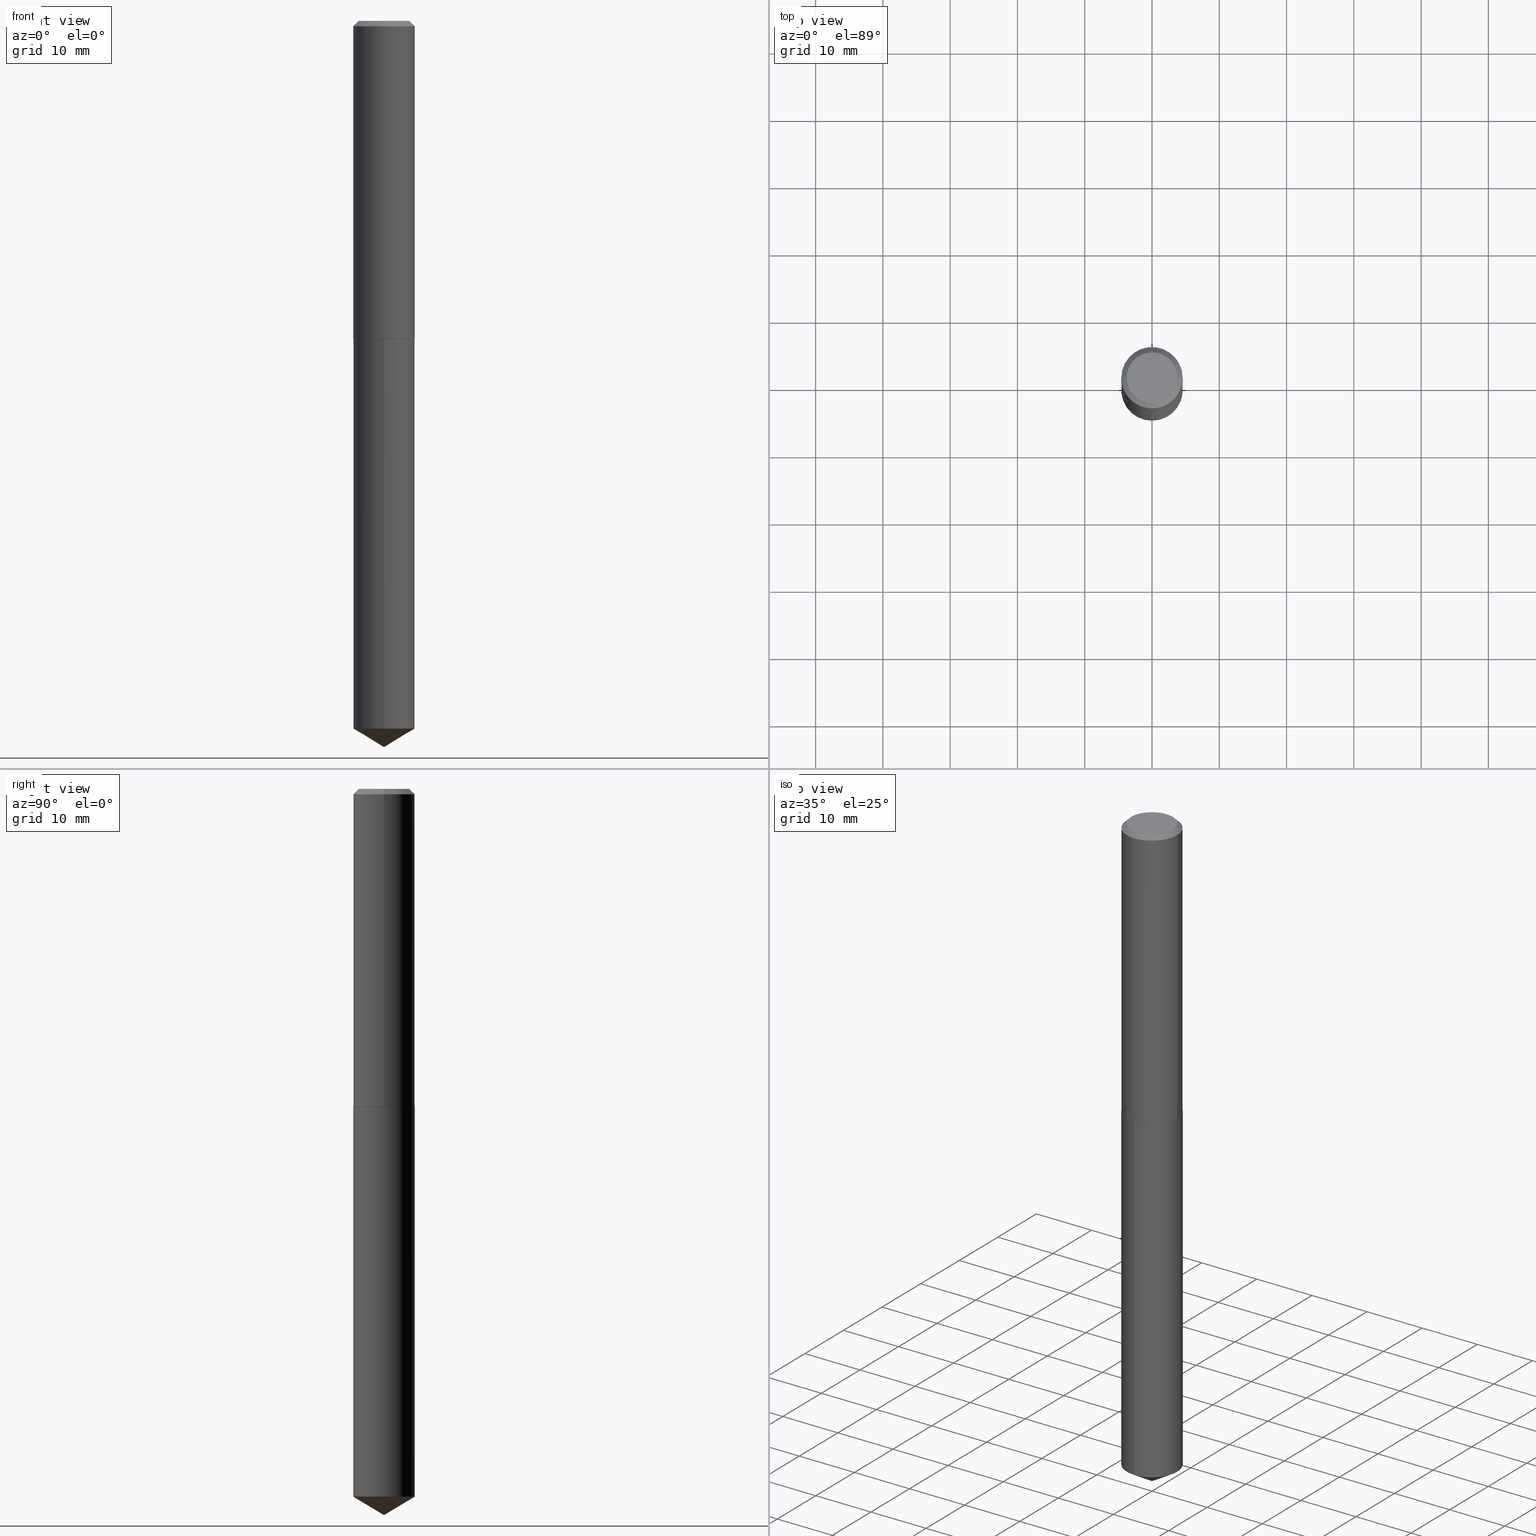
[diagram: canonical four-view strip — front | top / right | iso, engineering-drawing reading convention]
A machine part, canonical four-view strip (front | top / right | iso — engineering-drawing reading convention). The complete STEP part file that produces these views, byte-faithful:
ISO-10303-21;
HEADER;
FILE_DESCRIPTION (( 'STEP AP203' ),
    '1' );
FILE_NAME ('57198.STEP',
    '2024-04-22T23:50:33',
    ( '' ),
    ( '' ),
    'SwSTEP 2.0',
    'SolidWorks 2023',
    '' );
FILE_SCHEMA (( 'CONFIG_CONTROL_DESIGN' ));
ENDSEC;

DATA;
#1 = CARTESIAN_POINT ( 'NONE',  ( 1.039329044016705372E-28, -1.483872745502941435E-14, -4.250000000000000000 ) ) ;
#2 = VERTEX_POINT ( 'NONE', #67 ) ;
#3 = PLANE ( 'NONE',  #98 ) ;
#4 = EDGE_LOOP ( 'NONE', ( #230, #42, #160 ) ) ;
#5 = AXIS2_PLACEMENT_3D ( 'NONE', #371, #373, #348 ) ;
#6 = ADVANCED_FACE ( 'NONE', ( #215 ), #147, .T. ) ;
#7 = CARTESIAN_POINT ( 'NONE',  ( 1.276845296161000998E-15, 0.1796999999999854825, -4.142025346760749294 ) ) ;
#8 = ADVANCED_FACE ( 'NONE', ( #155 ), #70, .F. ) ;
#9 = PERSON ( 'UNSPECIFIED', 'UNSPECIFIED', 'UNSPECIFIED', ('UNSPECIFIED'), ('UNSPECIFIED'), ('UNSPECIFIED') ) ;
#10 = CC_DESIGN_APPROVAL ( #236, ( #134 ) ) ;
#11 = LINE ( 'NONE', #166, #362 ) ;
#12 = LINE ( 'NONE', #288, #386 ) ;
#13 = CARTESIAN_POINT ( 'NONE',  ( 7.642090019328611420E-31, -1.091087918388491499E-16, -0.03125000000000024286 ) ) ;
#14 = DIRECTION ( 'NONE',  ( -2.445468806185136597E-29, 3.491481338843145583E-15, 1.000000000000000000 ) ) ;
#15 = CLOSED_SHELL ( 'NONE', ( #37, #6, #275, #211, #301 ) ) ;
#16 =( GEOMETRIC_REPRESENTATION_CONTEXT ( 3 ) GLOBAL_UNCERTAINTY_ASSIGNED_CONTEXT ( ( #29 ) ) GLOBAL_UNIT_ASSIGNED_CONTEXT ( ( #174, #206, #148 ) ) REPRESENTATION_CONTEXT ( 'NONE', 'WORKASPACE' ) );
#17 = ADVANCED_FACE ( 'NONE', ( #96 ), #3, .F. ) ;
#18 = ORIENTED_EDGE ( 'NONE', *, *, #20, .F. ) ;
#19 = DIRECTION ( 'NONE',  ( 0.7071067811863059882, -2.468850131079726789E-15, 0.7071067811867890462 ) ) ;
#20 = EDGE_CURVE ( 'NONE', #55, #203, #26, .T. ) ;
#21 = ORIENTED_EDGE ( 'NONE', *, *, #198, .T. ) ;
#22 = LINE ( 'NONE', #151, #52 ) ;
#23 = DATE_AND_TIME ( #199, #223 ) ;
#24 = EDGE_CURVE ( 'NONE', #176, #329, #194, .T. ) ;
#25 = CARTESIAN_POINT ( 'NONE',  ( 0.1797000000000001929, -7.745153053955744867E-15, -1.858899999999999775 ) ) ;
#26 = CIRCLE ( 'NONE', #323, 0.1796999999999999986 ) ;
#27 = CIRCLE ( 'NONE', #241, 0.1484499999999999986 ) ;
#28 = EDGE_LOOP ( 'NONE', ( #149, #237, #262, #219 ) ) ;
#29 = UNCERTAINTY_MEASURE_WITH_UNIT (LENGTH_MEASURE( 1.000000000000000082E-05 ), #174, 'distance_accuracy_value', 'NONE');
#30 = ORIENTED_EDGE ( 'NONE', *, *, #233, .F. ) ;
#31 = APPROVAL_STATUS ( 'not_yet_approved' ) ;
#32 = ADVANCED_FACE ( 'NONE', ( #314 ), #190, .T. ) ;
#33 = DIRECTION ( 'NONE',  ( -2.445480017545961614E-29, 3.491465283536333251E-15, 1.000000000000000000 ) ) ;
#34 = APPROVAL_ROLE ( '' ) ;
#35 = CYLINDRICAL_SURFACE ( 'NONE', #106, 0.1796999999999999986 ) ;
#36 = AXIS2_PLACEMENT_3D ( 'NONE', #80, #14, #140 ) ;
#37 = ADVANCED_FACE ( 'NONE', ( #273 ), #388, .T. ) ;
#38 = CC_DESIGN_SECURITY_CLASSIFICATION ( #298, ( #134 ) ) ;
#39 = DIRECTION ( 'NONE',  ( -6.982962677686265922E-15, -1.000000000000000000, 3.040454083098790380E-15 ) ) ;
#40 = MANIFOLD_SOLID_BREP ( 'Body-Move/Copy2[1]', #15 ) ;
#41 = CARTESIAN_POINT ( 'NONE',  ( -0.1796999999999999986, -2.022866430146284319E-15, -0.03125000000000024286 ) ) ;
#42 = ORIENTED_EDGE ( 'NONE', *, *, #127, .T. ) ;
#43 = ORIENTED_EDGE ( 'NONE', *, *, #339, .F. ) ;
#44 = DIRECTION ( 'NONE',  ( -2.445468806185136597E-29, 3.491481338843145583E-15, 1.000000000000000000 ) ) ;
#45 = CARTESIAN_POINT ( 'NONE',  ( 4.547104698220641654E-29, -6.492060401444943851E-15, -1.859399999999999498 ) ) ;
#46 = DIRECTION ( 'NONE',  ( -2.445468806185136597E-29, 3.491481338843145583E-15, 1.000000000000000000 ) ) ;
#47 = VECTOR ( 'NONE', #128, 39.37007874015748143 ) ;
#48 = AXIS2_PLACEMENT_3D ( 'NONE', #77, #136, #322 ) ;
#49 = CARTESIAN_POINT ( 'NONE',  ( 0.1792000000000003590, -7.743407313286325730E-15, -1.859399999999999942 ) ) ;
#50 = DIRECTION ( 'NONE',  ( -2.445480017545961614E-29, 3.491465283536333251E-15, 1.000000000000000000 ) ) ;
#51 = ORIENTED_EDGE ( 'NONE', *, *, #24, .F. ) ;
#52 = VECTOR ( 'NONE', #175, 39.37007874015748854 ) ;
#53 = LOCAL_TIME ( 19, 50, 33.00000000000000000, #71 ) ;
#54 = DIRECTION ( 'NONE',  ( -6.982962677686265922E-15, -1.000000000000000000, 3.040454083098790380E-15 ) ) ;
#55 = VERTEX_POINT ( 'NONE', #7 ) ;
#56 = CC_DESIGN_PERSON_AND_ORGANIZATION_ASSIGNMENT ( #231, #88, ( #134 ) ) ;
#57 = ORIENTED_EDGE ( 'NONE', *, *, #214, .T. ) ;
#58 = APPROVAL_ROLE ( '' ) ;
#59 = CARTESIAN_POINT ( 'NONE',  ( 4.545881963817549414E-29, -6.490314660775522348E-15, -1.858899999999999775 ) ) ;
#60 = CONICAL_SURFACE ( 'NONE', #48, 0.1797000000000001929, 0.7853981633971067744 ) ;
#61 = ORIENTED_EDGE ( 'NONE', *, *, #115, .F. ) ;
#62 =( LENGTH_UNIT ( ) NAMED_UNIT ( * ) SI_UNIT ( $, .METRE. ) );
#63 = ORIENTED_EDGE ( 'NONE', *, *, #141, .F. ) ;
#64 = DIRECTION ( 'NONE',  ( 1.000000000000000000, -6.982962677686265922E-15, 0.000000000000000000 ) ) ;
#65 = DIRECTION ( 'NONE',  ( 1.000000000000000000, -6.982962677686265133E-15, 4.876180875728685732E-29 ) ) ;
#66 = CIRCLE ( 'NONE', #5, 0.1796999999999999986 ) ;
#67 = CARTESIAN_POINT ( 'NONE',  ( -1.254838393180176568E-15, -0.1797000000000064934, -1.859399999999999054 ) ) ;
#68 = LINE ( 'NONE', #183, #73 ) ;
#69 = ORIENTED_EDGE ( 'NONE', *, *, #233, .T. ) ;
#70 = PLANE ( 'NONE',  #316 ) ;
#71 = COORDINATED_UNIVERSAL_TIME_OFFSET ( 5, 0, .BEHIND. ) ;
#72 = EDGE_CURVE ( 'NONE', #329, #94, #68, .T. ) ;
#73 = VECTOR ( 'NONE', #389, 39.37007874015748143 ) ;
#74 = ADVANCED_FACE ( 'NONE', ( #124 ), #360, .T. ) ;
#75 = EDGE_CURVE ( 'NONE', #329, #176, #278, .T. ) ;
#76 = LINE ( 'NONE', #346, #309 ) ;
#77 = CARTESIAN_POINT ( 'NONE',  ( 4.545881963817549414E-29, -6.490314660775522348E-15, -1.858899999999999775 ) ) ;
#78 = ADVANCED_FACE ( 'NONE', ( #310 ), #161, .T. ) ;
#79 = PLANE ( 'NONE',  #374 ) ;
#80 = CARTESIAN_POINT ( 'NONE',  ( 4.547104698220642215E-29, -6.492060401444944640E-15, -1.859399999999999942 ) ) ;
#81 = CARTESIAN_POINT ( 'NONE',  ( -0.1796999999999999986, 1.145729601341373024E-15, -0.03125000000000024286 ) ) ;
#82 = PRODUCT_RELATED_PRODUCT_CATEGORY ( 'detail', '', ( #189 ) ) ;
#83 = ORIENTED_EDGE ( 'NONE', *, *, #311, .F. ) ;
#84 = PERSON_AND_ORGANIZATION_ROLE ( 'design_owner' ) ;
#85 = CONICAL_SURFACE ( 'NONE', #117, 0.1797000000000001929, 0.7853981633971067744 ) ;
#86 = VECTOR ( 'NONE', #19, 39.37007874015748143 ) ;
#87 = ORIENTED_EDGE ( 'NONE', *, *, #282, .F. ) ;
#88 = PERSON_AND_ORGANIZATION_ROLE ( 'creator' ) ;
#89 = ORIENTED_EDGE ( 'NONE', *, *, #220, .T. ) ;
#90 = ORIENTED_EDGE ( 'NONE', *, *, #132, .T. ) ;
#91 = LENGTH_MEASURE_WITH_UNIT ( LENGTH_MEASURE( 0.02539999999999999897 ), #62 );
#92 = AXIS2_PLACEMENT_3D ( 'NONE', #152, #33, #158 ) ;
#93 = CIRCLE ( 'NONE', #368, 0.1792000000000003590 ) ;
#94 = VERTEX_POINT ( 'NONE', #41 ) ;
#95 = PERSON_AND_ORGANIZATION_ROLE ( 'creator' ) ;
#96 = FACE_OUTER_BOUND ( 'NONE', #299, .T. ) ;
#97 = DIRECTION ( 'NONE',  ( -2.445468806185136597E-29, 3.491481338843145583E-15, 1.000000000000000000 ) ) ;
#98 = AXIS2_PLACEMENT_3D ( 'NONE', #330, #335, #218 ) ;
#99 = APPROVAL_PERSON_ORGANIZATION ( #385, #283, #34 ) ;
#100 = ORIENTED_EDGE ( 'NONE', *, *, #162, .T. ) ;
#101 = ORIENTED_EDGE ( 'NONE', *, *, #75, .F. ) ;
#102 = APPLICATION_CONTEXT ( 'configuration controlled 3d designs of mechanical parts and assemblies' ) ;
#103 = CARTESIAN_POINT ( 'NONE',  ( 4.545881963817549414E-29, -6.490314660775522348E-15, -1.858899999999999775 ) ) ;
#104 = EDGE_LOOP ( 'NONE', ( #63, #171, #90, #277 ) ) ;
#105 = EDGE_CURVE ( 'NONE', #365, #265, #93, .T. ) ;
#106 = AXIS2_PLACEMENT_3D ( 'NONE', #232, #352, #202 ) ;
#107 = DIRECTION ( 'NONE',  ( 1.000000000000000000, -6.982962677686265922E-15, 0.000000000000000000 ) ) ;
#108 = CARTESIAN_POINT ( 'NONE',  ( 0.1797000000000001929, -7.745153053955744867E-15, -1.858899999999999775 ) ) ;
#109 = CARTESIAN_POINT ( 'NONE',  ( 0.1484499999999999986, -1.180190604903788595E-15, 8.572527594806786642E-20 ) ) ;
#110 = AXIS2_PLACEMENT_3D ( 'NONE', #185, #274, #312 ) ;
#111 = LOCAL_TIME ( 19, 50, 33.00000000000000000, #381 ) ;
#112 = FACE_OUTER_BOUND ( 'NONE', #142, .T. ) ;
#113 = EDGE_LOOP ( 'NONE', ( #227, #384, #51, #221 ) ) ;
#114 = CALENDAR_DATE ( 2024, 22, 4 ) ;
#115 = EDGE_CURVE ( 'NONE', #377, #293, #168, .T. ) ;
#116 = ORIENTED_EDGE ( 'NONE', *, *, #105, .F. ) ;
#117 = AXIS2_PLACEMENT_3D ( 'NONE', #59, #379, #64 ) ;
#118 = VECTOR ( 'NONE', #319, 39.37007874015748143 ) ;
#119 = ORIENTED_EDGE ( 'NONE', *, *, #269, .F. ) ;
#120 = DATE_AND_TIME ( #114, #256 ) ;
#121 = EDGE_LOOP ( 'NONE', ( #119, #61, #315, #57 ) ) ;
#122 = APPROVAL_STATUS ( 'not_yet_approved' ) ;
#123 = CONICAL_SURFACE ( 'NONE', #217, 65.52281426576929846, 1.029744258676660307 ) ;
#124 = FACE_OUTER_BOUND ( 'NONE', #205, .T. ) ;
#125 = DIRECTION ( 'NONE',  ( 1.000000000000000000, -6.982962677686265922E-15, 4.876176775795935232E-29 ) ) ;
#126 = CALENDAR_DATE ( 2024, 22, 4 ) ;
#127 = EDGE_CURVE ( 'NONE', #353, #55, #156, .T. ) ;
#128 = DIRECTION ( 'NONE',  ( 6.090539988449801312E-15, 0.8571673007021169965, 0.5150380749100461619 ) ) ;
#129 = AXIS2_PLACEMENT_3D ( 'NONE', #181, #213, #54 ) ;
#130 = CARTESIAN_POINT ( 'NONE',  ( 4.547104698220641654E-29, -6.492060401444943851E-15, -1.859399999999999498 ) ) ;
#131 = DIRECTION ( 'NONE',  ( -2.445468806185136597E-29, 3.491481338843145583E-15, 1.000000000000000000 ) ) ;
#132 = EDGE_CURVE ( 'NONE', #203, #2, #12, .T. ) ;
#133 = AXIS2_PLACEMENT_3D ( 'NONE', #366, #358, #65 ) ;
#134 = PRODUCT_DEFINITION_FORMATION_WITH_SPECIFIED_SOURCE ( 'ANY', '', #189, .NOT_KNOWN. ) ;
#135 = LINE ( 'NONE', #108, #86 ) ;
#136 = DIRECTION ( 'NONE',  ( -2.445468806185136597E-29, 3.491481338843145583E-15, 1.000000000000000000 ) ) ;
#137 = DIRECTION ( 'NONE',  ( 6.982962677686265922E-15, 1.000000000000000000, -3.491465283536333646E-15 ) ) ;
#138 = EDGE_CURVE ( 'NONE', #265, #365, #216, .T. ) ;
#139 = LOCAL_TIME ( 19, 50, 33.00000000000000000, #238 ) ;
#140 = DIRECTION ( 'NONE',  ( 1.000000000000000000, -6.982962677686266711E-15, 0.000000000000000000 ) ) ;
#141 = EDGE_CURVE ( 'NONE', #55, #306, #257, .T. ) ;
#142 = EDGE_LOOP ( 'NONE', ( #69, #295 ) ) ;
#143 = LINE ( 'NONE', #195, #118 ) ;
#144 = APPLICATION_PROTOCOL_DEFINITION ( 'international standard', 'config_control_design', 1994, #334 ) ;
#145 = CARTESIAN_POINT ( 'NONE',  ( 4.547104698220641654E-29, -6.492060401444943851E-15, -1.859399999999999498 ) ) ;
#146 = DATE_TIME_ROLE ( 'classification_date' ) ;
#147 = CONICAL_SURFACE ( 'NONE', #92, 65.52281426576929846, 1.029744258676660307 ) ;
#148 =( NAMED_UNIT ( * ) SI_UNIT ( $, .STERADIAN. ) SOLID_ANGLE_UNIT ( ) );
#149 = ORIENTED_EDGE ( 'NONE', *, *, #72, .F. ) ;
#150 = PERSON_AND_ORGANIZATION ( #9, #170 ) ;
#151 = CARTESIAN_POINT ( 'NONE',  ( 1.039324838176169999E-28, -1.483878716150438969E-14, -4.250000000000000000 ) ) ;
#152 = CARTESIAN_POINT ( 'NONE',  ( -8.588547162010018053E-28, 1.226205058230847864E-13, 35.12007874015748143 ) ) ;
#153 = COORDINATED_UNIVERSAL_TIME_OFFSET ( 5, 0, .BEHIND. ) ;
#154 = CONICAL_SURFACE ( 'NONE', #280, 0.1796999999999999986, 0.7853981633974445042 ) ;
#155 = FACE_OUTER_BOUND ( 'NONE', #188, .T. ) ;
#156 = LINE ( 'NONE', #1, #47 ) ;
#157 = ORIENTED_EDGE ( 'NONE', *, *, #269, .T. ) ;
#158 = DIRECTION ( 'NONE',  ( -6.982962677686267499E-15, -1.000000000000000000, 3.468864327941548460E-15 ) ) ;
#159 = DATE_AND_TIME ( #126, #53 ) ;
#160 = ORIENTED_EDGE ( 'NONE', *, *, #198, .F. ) ;
#161 = CYLINDRICAL_SURFACE ( 'NONE', #207, 0.1797000000000001096 ) ;
#162 = EDGE_CURVE ( 'NONE', #353, #203, #22, .T. ) ;
#163 = CARTESIAN_POINT ( 'NONE',  ( 1.276845296161001393E-15, 0.1796999999999935038, -1.859400000000000164 ) ) ;
#164 = CIRCLE ( 'NONE', #129, 0.1796999999999999986 ) ;
#165 = CARTESIAN_POINT ( 'NONE',  ( -8.588547162010018053E-28, 1.226205058230847864E-13, 35.12007874015748143 ) ) ;
#166 = CARTESIAN_POINT ( 'NONE',  ( -0.1797000000000001929, -5.213469364614620154E-15, -1.858899999999999775 ) ) ;
#167 = EDGE_CURVE ( 'NONE', #306, #2, #296, .T. ) ;
#168 = CIRCLE ( 'NONE', #133, 0.1484499999999999986 ) ;
#169 = ORIENTED_EDGE ( 'NONE', *, *, #141, .T. ) ;
#170 = ORGANIZATION ( 'UNSPECIFIED', 'UNSPECIFIED', '' ) ;
#171 = ORIENTED_EDGE ( 'NONE', *, *, #20, .T. ) ;
#172 = CARTESIAN_POINT ( 'NONE',  ( -1.254838393180120559E-15, -0.1797000000000144315, -4.142025346760748405 ) ) ;
#173 = ORIENTED_EDGE ( 'NONE', *, *, #24, .T. ) ;
#174 =( CONVERSION_BASED_UNIT ( 'INCH', #91 ) LENGTH_UNIT ( ) NAMED_UNIT ( #242 ) );
#175 = DIRECTION ( 'NONE',  ( -5.985567269335963368E-15, -0.8571673007021134438, 0.5150380749100521571 ) ) ;
#176 = VERTEX_POINT ( 'NONE', #25 ) ;
#177 = PERSON_AND_ORGANIZATION ( #9, #170 ) ;
#178 = APPLICATION_PROTOCOL_DEFINITION ( 'international standard', 'config_control_design', 1994, #102 ) ;
#179 = ADVANCED_FACE ( 'NONE', ( #331 ), #85, .T. ) ;
#180 = DIRECTION ( 'NONE',  ( -2.445480017545961614E-29, 3.491465283536333251E-15, 1.000000000000000000 ) ) ;
#181 = CARTESIAN_POINT ( 'NONE',  ( 1.012921937126797406E-28, -1.446176755498018417E-14, -4.142025346760748405 ) ) ;
#182 = DESIGN_CONTEXT ( 'detailed design', #334, 'design' ) ;
#183 = CARTESIAN_POINT ( 'NONE',  ( -0.1797000000000001096, 1.276845296160900813E-15, -8.839326357188071190E-30 ) ) ;
#184 = AXIS2_PLACEMENT_3D ( 'NONE', #45, #50, #318 ) ;
#185 = CARTESIAN_POINT ( 'NONE',  ( 7.642090019328611420E-31, -1.091087918388491499E-16, -0.03125000000000024286 ) ) ;
#186 = DIRECTION ( 'NONE',  ( -6.982962677686265922E-15, -1.000000000000000000, 3.040454083098790380E-15 ) ) ;
#187 = CARTESIAN_POINT ( 'NONE',  ( 1.012921937126797406E-28, -1.446176755498018417E-14, -4.142025346760748405 ) ) ;
#188 = EDGE_LOOP ( 'NONE', ( #267, #325 ) ) ;
#189 = PRODUCT ( '57198', '57198', '', ( #354 ) ) ;
#190 = CONICAL_SURFACE ( 'NONE', #110, 0.1796999999999999986, 0.7853981633974445042 ) ;
#191 = AXIS2_PLACEMENT_3D ( 'NONE', #252, #46, #107 ) ;
#192 = CARTESIAN_POINT ( 'NONE',  ( 0.1796999999999999986, -1.363947185019071028E-15, -0.03125000000000024286 ) ) ;
#193 = FACE_OUTER_BOUND ( 'NONE', #291, .T. ) ;
#194 = CIRCLE ( 'NONE', #255, 0.1797000000000001929 ) ;
#195 = CARTESIAN_POINT ( 'NONE',  ( 0.1797000000000001096, -1.254838393180222716E-15, 8.762489666105301250E-30 ) ) ;
#196 = FACE_OUTER_BOUND ( 'NONE', #281, .T. ) ;
#197 = DIRECTION ( 'NONE',  ( -0.7071067811865447972, 2.468850131082228662E-15, -0.7071067811865501263 ) ) ;
#198 = EDGE_CURVE ( 'NONE', #203, #55, #164, .T. ) ;
#199 = CALENDAR_DATE ( 2024, 22, 4 ) ;
#200 = APPROVAL_PERSON_ORGANIZATION ( #263, #390, #336 ) ;
#201 = DIRECTION ( 'NONE',  ( 1.000000000000000000, 0.000000000000000000, 0.000000000000000000 ) ) ;
#202 = DIRECTION ( 'NONE',  ( -6.982962677686265922E-15, -1.000000000000000000, 3.040454083098790380E-15 ) ) ;
#203 = VERTEX_POINT ( 'NONE', #172 ) ;
#204 = DATE_AND_TIME ( #297, #111 ) ;
#205 = EDGE_LOOP ( 'NONE', ( #173, #234, #212, #382 ) ) ;
#206 =( NAMED_UNIT ( * ) PLANE_ANGLE_UNIT ( ) SI_UNIT ( $, .RADIAN. ) );
#207 = AXIS2_PLACEMENT_3D ( 'NONE', #302, #131, #359 ) ;
#208 = VECTOR ( 'NONE', #197, 39.37007874015748854 ) ;
#209 = DIRECTION ( 'NONE',  ( -1.000000000000000000, 6.982962677686265922E-15, -4.876176775795935793E-29 ) ) ;
#210 = CARTESIAN_POINT ( 'NONE',  ( -0.1484499999999999986, 1.091175205421949460E-15, 8.572527593287684120E-20 ) ) ;
#211 = ADVANCED_FACE ( 'NONE', ( #304 ), #35, .T. ) ;
#212 = ORIENTED_EDGE ( 'NONE', *, *, #305, .F. ) ;
#213 = DIRECTION ( 'NONE',  ( -2.445480017545961614E-29, 3.491465283536333251E-15, 1.000000000000000000 ) ) ;
#214 = EDGE_CURVE ( 'NONE', #94, #258, #308, .T. ) ;
#215 = FACE_OUTER_BOUND ( 'NONE', #4, .T. ) ;
#216 = CIRCLE ( 'NONE', #36, 0.1792000000000003590 ) ;
#217 = AXIS2_PLACEMENT_3D ( 'NONE', #165, #320, #344 ) ;
#218 = DIRECTION ( 'NONE',  ( 1.000000000000000000, -6.982962677686265922E-15, 4.876176775795935793E-29 ) ) ;
#219 = ORIENTED_EDGE ( 'NONE', *, *, #214, .F. ) ;
#220 = EDGE_CURVE ( 'NONE', #365, #176, #135, .T. ) ;
#221 = ORIENTED_EDGE ( 'NONE', *, *, #220, .F. ) ;
#222 = VECTOR ( 'NONE', #240, 39.37007874015748143 ) ;
#223 = LOCAL_TIME ( 19, 50, 33.00000000000000000, #349 ) ;
#224 = CARTESIAN_POINT ( 'NONE',  ( -0.1792000000000003590, -5.216118591788731355E-15, -1.859399999999999942 ) ) ;
#225 = AXIS2_PLACEMENT_3D ( 'NONE', #130, #180, #39 ) ;
#226 = DIRECTION ( 'NONE',  ( 2.445480017545961054E-29, -3.491465283536333646E-15, -1.000000000000000000 ) ) ;
#227 = ORIENTED_EDGE ( 'NONE', *, *, #105, .T. ) ;
#228 = APPROVAL_DATE_TIME ( #120, #236 ) ;
#229 = AXIS2_PLACEMENT_3D ( 'NONE', #145, #357, #268 ) ;
#230 = ORIENTED_EDGE ( 'NONE', *, *, #162, .F. ) ;
#231 = PERSON_AND_ORGANIZATION ( #9, #170 ) ;
#232 = CARTESIAN_POINT ( 'NONE',  ( 4.547104698220641654E-29, -6.492060401444943851E-15, -1.859399999999999498 ) ) ;
#233 = EDGE_CURVE ( 'NONE', #2, #306, #290, .T. ) ;
#234 = ORIENTED_EDGE ( 'NONE', *, *, #72, .T. ) ;
#235 = CARTESIAN_POINT ( 'NONE',  ( 0.000000000000000000, 0.000000000000000000, 0.000000000000000000 ) ) ;
#236 = APPROVAL ( #31, 'UNSPECIFIED' ) ;
#237 = ORIENTED_EDGE ( 'NONE', *, *, #75, .T. ) ;
#238 = COORDINATED_UNIVERSAL_TIME_OFFSET ( 5, 0, .BEHIND. ) ;
#239 = ORIENTED_EDGE ( 'NONE', *, *, #127, .F. ) ;
#240 = DIRECTION ( 'NONE',  ( -2.445480017545961614E-29, 3.491465283536333646E-15, 1.000000000000000000 ) ) ;
#241 = AXIS2_PLACEMENT_3D ( 'NONE', #317, #285, #259 ) ;
#242 = DIMENSIONAL_EXPONENTS ( 1.000000000000000000, 0.000000000000000000, 0.000000000000000000, 0.000000000000000000, 0.000000000000000000, 0.000000000000000000, 0.000000000000000000 ) ;
#243 = CARTESIAN_POINT ( 'NONE',  ( 4.547104698220642215E-29, -6.492060401444944640E-15, -1.859399999999999942 ) ) ;
#244 = DIRECTION ( 'NONE',  ( 1.000000000000000000, -6.982962677686265922E-15, 0.000000000000000000 ) ) ;
#245 = APPROVAL_DATE_TIME ( #159, #390 ) ;
#246 = CARTESIAN_POINT ( 'NONE',  ( -1.048192441068291587E-48, 1.496541006063979969E-34, 4.286263797015848068E-20 ) ) ;
#247 = CLOSED_SHELL ( 'NONE', ( #367, #74, #179, #17, #343, #78, #32, #8 ) ) ;
#248 = DIRECTION ( 'NONE',  ( -2.445468806185136597E-29, 3.491481338843145583E-15, 1.000000000000000000 ) ) ;
#249 = PRODUCT_DEFINITION_SHAPE ( 'NONE', 'NONE',  #345 ) ;
#250 = CC_DESIGN_PERSON_AND_ORGANIZATION_ASSIGNMENT ( #356, #351, ( #298 ) ) ;
#251 = DIRECTION ( 'NONE',  ( 1.000000000000000000, -6.982962677686266711E-15, 0.000000000000000000 ) ) ;
#252 = CARTESIAN_POINT ( 'NONE',  ( 7.642090019328611420E-31, -1.091087918388491499E-16, -0.03125000000000024286 ) ) ;
#253 = CARTESIAN_POINT ( 'NONE',  ( 1.039329007457033588E-28, -1.483872745502941435E-14, -4.250000000000000000 ) ) ;
#254 = DIRECTION ( 'NONE',  ( -0.7071067811863059882, 7.493145998869481680E-15, 0.7071067811867890462 ) ) ;
#255 = AXIS2_PLACEMENT_3D ( 'NONE', #276, #337, #363 ) ;
#256 = LOCAL_TIME ( 19, 50, 33.00000000000000000, #153 ) ;
#257 = LINE ( 'NONE', #375, #222 ) ;
#258 = VERTEX_POINT ( 'NONE', #192 ) ;
#259 = DIRECTION ( 'NONE',  ( 1.000000000000000000, -6.982962677686265133E-15, 4.876180875728685732E-29 ) ) ;
#260 = EDGE_LOOP ( 'NONE', ( #87, #157, #327, #83 ) ) ;
#261 = DIRECTION ( 'NONE',  ( 0.000000000000000000, 0.000000000000000000, 1.000000000000000000 ) ) ;
#262 = ORIENTED_EDGE ( 'NONE', *, *, #355, .T. ) ;
#263 = PERSON_AND_ORGANIZATION ( #9, #170 ) ;
#264 = AXIS2_PLACEMENT_3D ( 'NONE', #235, #261, #201 ) ;
#265 = VERTEX_POINT ( 'NONE', #224 ) ;
#266 = PERSON_AND_ORGANIZATION_ROLE ( 'design_supplier' ) ;
#267 = ORIENTED_EDGE ( 'NONE', *, *, #115, .T. ) ;
#268 = DIRECTION ( 'NONE',  ( -6.982962677686265922E-15, -1.000000000000000000, 3.040454083098790380E-15 ) ) ;
#269 = EDGE_CURVE ( 'NONE', #293, #258, #76, .T. ) ;
#270 = DIRECTION ( 'NONE',  ( -2.445480017545961614E-29, 3.491465283536333251E-15, 1.000000000000000000 ) ) ;
#271 = AXIS2_PLACEMENT_3D ( 'NONE', #333, #248, #125 ) ;
#272 = CC_DESIGN_APPROVAL ( #390, ( #298 ) ) ;
#273 = FACE_OUTER_BOUND ( 'NONE', #350, .T. ) ;
#274 = DIRECTION ( 'NONE',  ( 2.445468806185136597E-29, -3.491481338843145583E-15, -1.000000000000000000 ) ) ;
#275 = ADVANCED_FACE ( 'NONE', ( #193 ), #123, .T. ) ;
#276 = CARTESIAN_POINT ( 'NONE',  ( 4.545881963817549414E-29, -6.490314660775522348E-15, -1.858899999999999775 ) ) ;
#277 = ORIENTED_EDGE ( 'NONE', *, *, #167, .F. ) ;
#278 = CIRCLE ( 'NONE', #289, 0.1797000000000001929 ) ;
#279 = CC_DESIGN_DATE_AND_TIME_ASSIGNMENT ( #23, #146, ( #298 ) ) ;
#280 = AXIS2_PLACEMENT_3D ( 'NONE', #13, #287, #326 ) ;
#281 = EDGE_LOOP ( 'NONE', ( #43, #380, #89, #101 ) ) ;
#282 = EDGE_CURVE ( 'NONE', #293, #377, #27, .T. ) ;
#283 = APPROVAL ( #122, 'UNSPECIFIED' ) ;
#284 = CARTESIAN_POINT ( 'NONE',  ( -0.1797000000000001929, -5.213469364614620154E-15, -1.858899999999999775 ) ) ;
#285 = DIRECTION ( 'NONE',  ( -2.445468806185136597E-29, 3.491481338843145583E-15, 1.000000000000000000 ) ) ;
#286 = FACE_OUTER_BOUND ( 'NONE', #260, .T. ) ;
#287 = DIRECTION ( 'NONE',  ( 2.445468806185136597E-29, -3.491481338843145583E-15, -1.000000000000000000 ) ) ;
#288 = CARTESIAN_POINT ( 'NONE',  ( -1.254838393180176568E-15, -0.1797000000000064934, -1.859399999999999054 ) ) ;
#289 = AXIS2_PLACEMENT_3D ( 'NONE', #103, #44, #244 ) ;
#290 = CIRCLE ( 'NONE', #184, 0.1796999999999999986 ) ;
#291 = EDGE_LOOP ( 'NONE', ( #239, #100, #18 ) ) ;
#292 = MANIFOLD_SOLID_BREP ( 'Body-Move/Copy2[2]', #247 ) ;
#293 = VERTEX_POINT ( 'NONE', #109 ) ;
#294 = APPROVAL_DATE_TIME ( #204, #283 ) ;
#295 = ORIENTED_EDGE ( 'NONE', *, *, #167, .T. ) ;
#296 = CIRCLE ( 'NONE', #229, 0.1796999999999999986 ) ;
#297 = CALENDAR_DATE ( 2024, 22, 4 ) ;
#298 = SECURITY_CLASSIFICATION ( '', '', #383 ) ;
#299 = EDGE_LOOP ( 'NONE', ( #116, #321 ) ) ;
#300 = PERSON_AND_ORGANIZATION ( #9, #170 ) ;
#301 = ADVANCED_FACE ( 'NONE', ( #112 ), #79, .F. ) ;
#302 = CARTESIAN_POINT ( 'NONE',  ( 0.000000000000000000, 0.000000000000000000, 0.000000000000000000 ) ) ;
#303 = PERSON_AND_ORGANIZATION ( #9, #170 ) ;
#304 = FACE_OUTER_BOUND ( 'NONE', #104, .T. ) ;
#305 = EDGE_CURVE ( 'NONE', #258, #94, #66, .T. ) ;
#306 = VERTEX_POINT ( 'NONE', #163 ) ;
#307 = SHAPE_DEFINITION_REPRESENTATION ( #249, #342 ) ;
#308 = CIRCLE ( 'NONE', #191, 0.1796999999999999986 ) ;
#309 = VECTOR ( 'NONE', #341, 39.37007874015748854 ) ;
#310 = FACE_OUTER_BOUND ( 'NONE', #28, .T. ) ;
#311 = EDGE_CURVE ( 'NONE', #377, #94, #376, .T. ) ;
#312 = DIRECTION ( 'NONE',  ( -1.000000000000000000, 6.982962677686265922E-15, 0.000000000000000000 ) ) ;
#313 = CC_DESIGN_PERSON_AND_ORGANIZATION_ASSIGNMENT ( #300, #95, ( #345 ) ) ;
#314 = FACE_OUTER_BOUND ( 'NONE', #121, .T. ) ;
#315 = ORIENTED_EDGE ( 'NONE', *, *, #311, .T. ) ;
#316 = AXIS2_PLACEMENT_3D ( 'NONE', #246, #338, #209 ) ;
#317 = CARTESIAN_POINT ( 'NONE',  ( -2.096384882136583174E-48, 2.993082012127959938E-34, 8.572527594031696135E-20 ) ) ;
#318 = DIRECTION ( 'NONE',  ( -6.982962677686265922E-15, -1.000000000000000000, 3.040454083098790380E-15 ) ) ;
#319 = DIRECTION ( 'NONE',  ( -2.445468806185136877E-29, 3.491481338843145188E-15, 1.000000000000000000 ) ) ;
#320 = DIRECTION ( 'NONE',  ( -2.445480017545961614E-29, 3.491465283536333251E-15, 1.000000000000000000 ) ) ;
#321 = ORIENTED_EDGE ( 'NONE', *, *, #138, .F. ) ;
#322 = DIRECTION ( 'NONE',  ( 1.000000000000000000, -6.982962677686265922E-15, 0.000000000000000000 ) ) ;
#323 = AXIS2_PLACEMENT_3D ( 'NONE', #187, #270, #186 ) ;
#324 = DATE_TIME_ROLE ( 'creation_date' ) ;
#325 = ORIENTED_EDGE ( 'NONE', *, *, #282, .T. ) ;
#326 = DIRECTION ( 'NONE',  ( -1.000000000000000000, 6.982962677686265922E-15, 0.000000000000000000 ) ) ;
#327 = ORIENTED_EDGE ( 'NONE', *, *, #305, .T. ) ;
#328 = DATE_AND_TIME ( #378, #139 ) ;
#329 = VERTEX_POINT ( 'NONE', #284 ) ;
#330 = CARTESIAN_POINT ( 'NONE',  ( 2.567716061788221322E-29, -9.326657588620905887E-15, -1.859399999999999942 ) ) ;
#331 = FACE_OUTER_BOUND ( 'NONE', #113, .T. ) ;
#332 = CC_DESIGN_PERSON_AND_ORGANIZATION_ASSIGNMENT ( #150, #84, ( #189 ) ) ;
#333 = CARTESIAN_POINT ( 'NONE',  ( 0.000000000000000000, 0.000000000000000000, 0.000000000000000000 ) ) ;
#334 = APPLICATION_CONTEXT ( 'configuration controlled 3d designs of mechanical parts and assemblies' ) ;
#335 = DIRECTION ( 'NONE',  ( -2.438088387897960049E-29, 3.491481338843145188E-15, 1.000000000000000000 ) ) ;
#336 = APPROVAL_ROLE ( '' ) ;
#337 = DIRECTION ( 'NONE',  ( -2.445468806185136597E-29, 3.491481338843145583E-15, 1.000000000000000000 ) ) ;
#338 = DIRECTION ( 'NONE',  ( 2.438088387897960049E-29, -3.491481338843145188E-15, -1.000000000000000000 ) ) ;
#339 = EDGE_CURVE ( 'NONE', #265, #329, #11, .T. ) ;
#340 = CC_DESIGN_PERSON_AND_ORGANIZATION_ASSIGNMENT ( #177, #266, ( #134 ) ) ;
#341 = DIRECTION ( 'NONE',  ( 0.7071067811865447972, -7.319954787623245001E-15, -0.7071067811865501263 ) ) ;
#342 = ADVANCED_BREP_SHAPE_REPRESENTATION ( '57198', ( #40, #292, #264 ), #16 ) ;
#343 = ADVANCED_FACE ( 'NONE', ( #196 ), #60, .T. ) ;
#344 = DIRECTION ( 'NONE',  ( -6.982962677686267499E-15, -1.000000000000000000, 3.468864327941548460E-15 ) ) ;
#345 = PRODUCT_DEFINITION ( 'UNKNOWN', '', #134, #182 ) ;
#346 = CARTESIAN_POINT ( 'NONE',  ( 0.1796999999999999986, -1.341940282038393326E-15, -0.03125000000000024286 ) ) ;
#347 = DIRECTION ( 'NONE',  ( -2.445480017545961614E-29, 3.491465283536333646E-15, 1.000000000000000000 ) ) ;
#348 = DIRECTION ( 'NONE',  ( 1.000000000000000000, -6.982962677686265922E-15, 0.000000000000000000 ) ) ;
#349 = COORDINATED_UNIVERSAL_TIME_OFFSET ( 5, 0, .BEHIND. ) ;
#350 = EDGE_LOOP ( 'NONE', ( #21, #169, #30, #361 ) ) ;
#351 = PERSON_AND_ORGANIZATION_ROLE ( 'classification_officer' ) ;
#352 = DIRECTION ( 'NONE',  ( -2.445480017545961614E-29, 3.491465283536333251E-15, 1.000000000000000000 ) ) ;
#353 = VERTEX_POINT ( 'NONE', #253 ) ;
#354 = MECHANICAL_CONTEXT ( 'NONE', #102, 'mechanical' ) ;
#355 = EDGE_CURVE ( 'NONE', #176, #258, #143, .T. ) ;
#356 = PERSON_AND_ORGANIZATION ( #9, #170 ) ;
#357 = DIRECTION ( 'NONE',  ( -2.445480017545961614E-29, 3.491465283536333251E-15, 1.000000000000000000 ) ) ;
#358 = DIRECTION ( 'NONE',  ( -2.445468806185136597E-29, 3.491481338843145583E-15, 1.000000000000000000 ) ) ;
#359 = DIRECTION ( 'NONE',  ( 1.000000000000000000, -6.982962677686265922E-15, 4.876176775795935232E-29 ) ) ;
#360 = CYLINDRICAL_SURFACE ( 'NONE', #271, 0.1797000000000001096 ) ;
#361 = ORIENTED_EDGE ( 'NONE', *, *, #132, .F. ) ;
#362 = VECTOR ( 'NONE', #254, 39.37007874015748143 ) ;
#363 = DIRECTION ( 'NONE',  ( 1.000000000000000000, -6.982962677686265922E-15, 0.000000000000000000 ) ) ;
#364 = APPROVAL_STATUS ( 'not_yet_approved' ) ;
#365 = VERTEX_POINT ( 'NONE', #49 ) ;
#366 = CARTESIAN_POINT ( 'NONE',  ( -2.096384882136583174E-48, 2.993082012127959938E-34, 8.572527594031696135E-20 ) ) ;
#367 = ADVANCED_FACE ( 'NONE', ( #286 ), #154, .T. ) ;
#368 = AXIS2_PLACEMENT_3D ( 'NONE', #243, #97, #251 ) ;
#369 = APPROVAL_PERSON_ORGANIZATION ( #303, #236, #58 ) ;
#370 = CARTESIAN_POINT ( 'NONE',  ( 4.547104698220641654E-29, -6.492060401444943851E-15, -1.859399999999999498 ) ) ;
#371 = CARTESIAN_POINT ( 'NONE',  ( 7.642090019328611420E-31, -1.091087918388491499E-16, -0.03125000000000024286 ) ) ;
#372 = CC_DESIGN_DATE_AND_TIME_ASSIGNMENT ( #328, #324, ( #345 ) ) ;
#373 = DIRECTION ( 'NONE',  ( -2.445468806185136597E-29, 3.491481338843145583E-15, 1.000000000000000000 ) ) ;
#374 = AXIS2_PLACEMENT_3D ( 'NONE', #370, #226, #137 ) ;
#375 = CARTESIAN_POINT ( 'NONE',  ( 1.276845296160945187E-15, 0.1796999999999935038, -1.859400000000000164 ) ) ;
#376 = LINE ( 'NONE', #81, #208 ) ;
#377 = VERTEX_POINT ( 'NONE', #210 ) ;
#378 = CALENDAR_DATE ( 2024, 22, 4 ) ;
#379 = DIRECTION ( 'NONE',  ( -2.445468806185136597E-29, 3.491481338843145583E-15, 1.000000000000000000 ) ) ;
#380 = ORIENTED_EDGE ( 'NONE', *, *, #138, .T. ) ;
#381 = COORDINATED_UNIVERSAL_TIME_OFFSET ( 5, 0, .BEHIND. ) ;
#382 = ORIENTED_EDGE ( 'NONE', *, *, #355, .F. ) ;
#383 = SECURITY_CLASSIFICATION_LEVEL ( 'unclassified' ) ;
#384 = ORIENTED_EDGE ( 'NONE', *, *, #339, .T. ) ;
#385 = PERSON_AND_ORGANIZATION ( #9, #170 ) ;
#386 = VECTOR ( 'NONE', #347, 39.37007874015748143 ) ;
#387 = CC_DESIGN_APPROVAL ( #283, ( #345 ) ) ;
#388 = CYLINDRICAL_SURFACE ( 'NONE', #225, 0.1796999999999999986 ) ;
#389 = DIRECTION ( 'NONE',  ( -2.445468806185136877E-29, 3.491481338843145188E-15, 1.000000000000000000 ) ) ;
#390 = APPROVAL ( #364, 'UNSPECIFIED' ) ;
ENDSEC;
END-ISO-10303-21;
